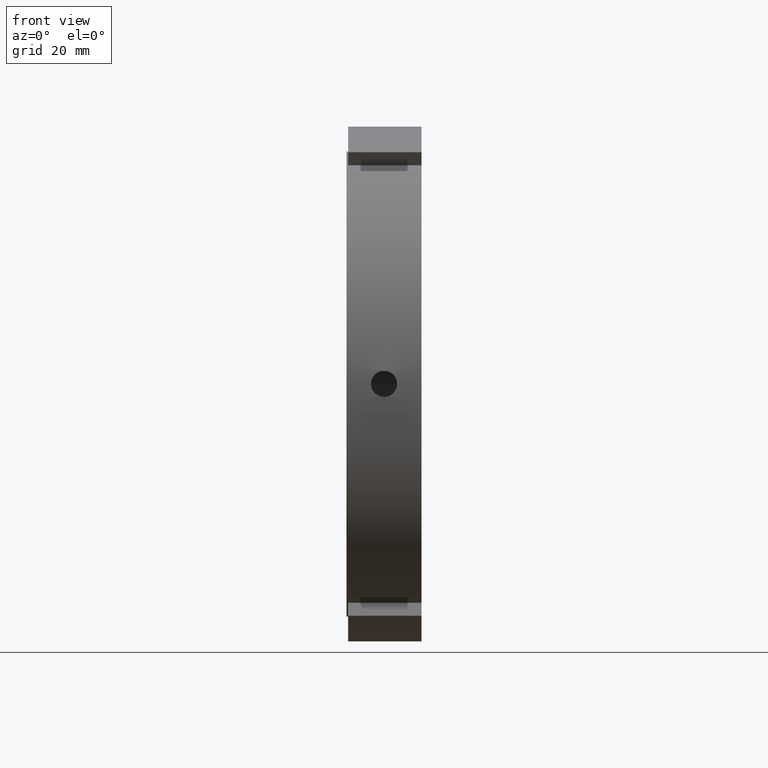
[diagram: clean part render]
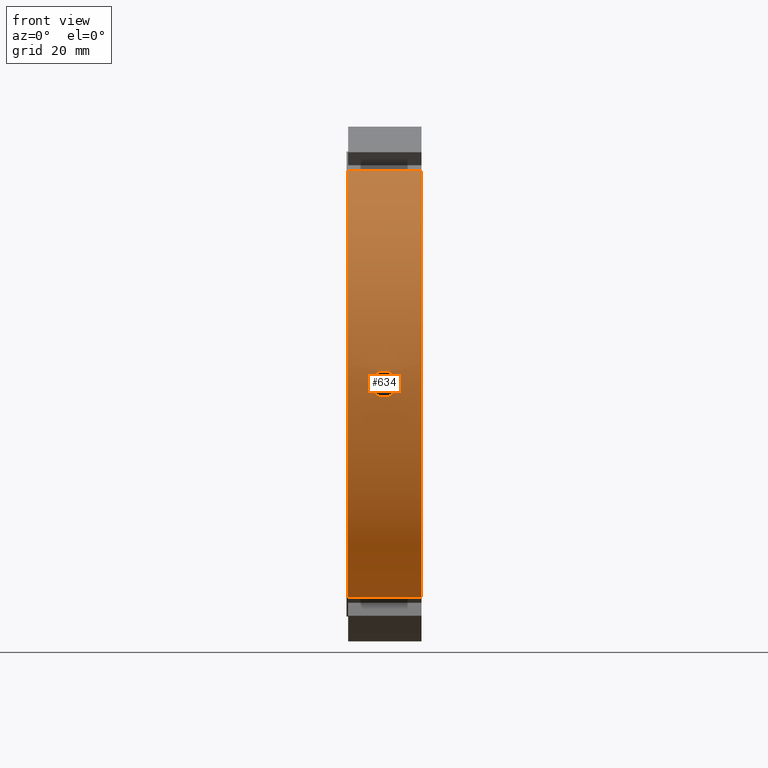
[diagram: same view with one face highlighted and labeled with its STEP entity id]
A machine part, front view. The second image highlights one B-rep face of the part: STEP entity #634.
In plain terms, the highlighted cylindrical surface (partial cylindrical patch) has radius 82.5 mm, axis along (1, 0, 0).
Its self-contained STEP definition (entity closure, byte-faithful):
#75=CARTESIAN_POINT('',(0.499999999999976,-46.336916878414101,-68.257894299509005));
#76=VERTEX_POINT('',#75);
#91=CARTESIAN_POINT('',(23.999999999999986,-46.336916878414101,-68.257894299509005));
#92=VERTEX_POINT('',#91);
#99=CARTESIAN_POINT('',(0.499999999999975,-46.336916878414094,-68.257894299508990));
#100=DIRECTION('',(1.0,0.0,0.0));
#101=VECTOR('',#100,23.500000000000011);
#102=LINE('',#99,#101);
#103=EDGE_CURVE('',#76,#92,#102,.T.);
#303=CARTESIAN_POINT('',(0.499999999999976,-46.336916878414044,68.257894299509033));
#304=VERTEX_POINT('',#303);
#313=CARTESIAN_POINT('',(23.999999999999986,-46.336916878414044,68.257894299509033));
#314=VERTEX_POINT('',#313);
#315=CARTESIAN_POINT('',(23.999999999999986,-46.336916878414044,68.257894299509033));
#316=DIRECTION('',(-1.0,0.0,0.0));
#317=VECTOR('',#316,23.500000000000011);
#318=LINE('',#315,#317);
#319=EDGE_CURVE('',#314,#304,#318,.T.);
#499=CARTESIAN_POINT('',(23.999999999999986,0.0,0.0));
#500=DIRECTION('',(1.0,0.0,0.0));
#501=DIRECTION('',(0.0,1.0,0.0));
#502=AXIS2_PLACEMENT_3D('',#499,#500,#501);
#503=CIRCLE('',#502,82.500000000000000);
#504=EDGE_CURVE('',#314,#92,#503,.T.);
#576=CARTESIAN_POINT('',(12.249999999999980,0.0,0.0));
#577=DIRECTION('',(1.0,0.0,0.0));
#578=DIRECTION('',(0.0,1.0,0.0));
#579=AXIS2_PLACEMENT_3D('',#576,#577,#578);
#580=CYLINDRICAL_SURFACE('',#579,82.500000000000000);
#581=ORIENTED_EDGE('',*,*,#103,.T.);
#582=ORIENTED_EDGE('',*,*,#504,.F.);
#583=ORIENTED_EDGE('',*,*,#319,.T.);
#584=CARTESIAN_POINT('',(0.499999999999976,0.0,0.0));
#585=DIRECTION('',(1.0,0.0,0.0));
#586=DIRECTION('',(0.0,1.0,0.0));
#587=AXIS2_PLACEMENT_3D('',#584,#585,#586);
#588=CIRCLE('',#587,82.500000000000000);
#589=EDGE_CURVE('',#304,#76,#588,.T.);
#590=ORIENTED_EDGE('',*,*,#589,.T.);
#591=EDGE_LOOP('',(#581,#582,#583,#590));
#592=FACE_OUTER_BOUND('',#591,.T.);
#593=CARTESIAN_POINT('',(11.999999999999984,-82.393632375323762,4.188000000000000));
#594=VERTEX_POINT('',#593);
#595=CARTESIAN_POINT('',(11.999999999999984,-82.393632375323747,4.188000000000000));
#596=CARTESIAN_POINT('',(12.525951644810846,-82.393632375323747,4.188000000000000));
#597=CARTESIAN_POINT('',(13.086898726166442,-82.399186571573054,4.082869934847188));
#598=CARTESIAN_POINT('',(14.118708632293311,-82.419254576669246,3.655441086518424));
#599=CARTESIAN_POINT('',(14.589579118633827,-82.433479429997021,3.333147280584681));
#600=CARTESIAN_POINT('',(15.333147197132222,-82.460187249507271,2.589579202086286));
#601=CARTESIAN_POINT('',(15.655441065487317,-82.474404102243170,2.118708677694756));
#602=CARTESIAN_POINT('',(16.082869968049618,-82.494453812369741,1.086898651383455));
#603=CARTESIAN_POINT('',(16.187999999999985,-82.500000000000000,0.525951526753225));
#604=CARTESIAN_POINT('',(16.187999999999985,-82.500000000000000,-0.525951526753224));
#605=CARTESIAN_POINT('',(16.082869968049621,-82.494453812369741,-1.086898651383454));
#606=CARTESIAN_POINT('',(15.655441065487320,-82.474404102243170,-2.118708677694756));
#607=CARTESIAN_POINT('',(15.333147197132222,-82.460187249507271,-2.589579202086285));
#608=CARTESIAN_POINT('',(14.589579118633827,-82.433479429997021,-3.333147280584681));
#609=CARTESIAN_POINT('',(14.118708632293311,-82.419254576669246,-3.655441086518423));
#610=CARTESIAN_POINT('',(13.086898726166442,-82.399186571573054,-4.082869934847188));
#611=CARTESIAN_POINT('',(12.525951644810846,-82.393632375323762,-4.188000000000000));
#612=CARTESIAN_POINT('',(11.474048355189122,-82.393632375323762,-4.188000000000000));
#613=CARTESIAN_POINT('',(10.913101273833526,-82.399186571573054,-4.082869934847188));
#614=CARTESIAN_POINT('',(9.881291367706659,-82.419254576669246,-3.655441086518425));
#615=CARTESIAN_POINT('',(9.410420881366143,-82.433479429997021,-3.333147280584681));
#616=CARTESIAN_POINT('',(8.666852802867748,-82.460187249507271,-2.589579202086286));
#617=CARTESIAN_POINT('',(8.344558934512648,-82.474404102243170,-2.118708677694757));
#618=CARTESIAN_POINT('',(7.917130031950348,-82.494453812369741,-1.086898651383456));
#619=CARTESIAN_POINT('',(7.811999999999983,-82.500000000000000,-0.525951526753226));
#620=CARTESIAN_POINT('',(7.811999999999983,-82.500000000000000,0.525951526753224));
#621=CARTESIAN_POINT('',(7.917130031950349,-82.494453812369741,1.086898651383452));
#622=CARTESIAN_POINT('',(8.344558934512648,-82.474404102243170,2.118708677694754));
#623=CARTESIAN_POINT('',(8.666852802867744,-82.460187249507271,2.589579202086283));
#624=CARTESIAN_POINT('',(9.410420881366141,-82.433479429997021,3.333147280584679));
#625=CARTESIAN_POINT('',(9.881291367706657,-82.419254576669246,3.655441086518423));
#626=CARTESIAN_POINT('',(10.913101273833522,-82.399186571573054,4.082869934847188));
#627=CARTESIAN_POINT('',(11.474048355189122,-82.393632375323747,4.188000000000000));
#628=CARTESIAN_POINT('',(11.999999999999984,-82.393632375323747,4.188000000000000));
#629=B_SPLINE_CURVE_WITH_KNOTS('',3,(#595,#596,#597,#598,#599,#600,#601,#602,#603,#604,#605,#606,#607,#608,#609,#610,#611,#612,#613,#614,#615,#616,#617,#618,#619,#620,#621,#622,#623,#624,#625,#626,#627,#628),.UNSPECIFIED.,.T.,.U.,(4,2,2,2,2,2,2,2,2,2,2,2,2,2,2,2,4),(0.0,0.157785493443258,0.315570986886517,0.473356444912484,0.631141902938452,0.788927360964419,0.946712818990387,1.104498312433645,1.262283805876904,1.420069299320163,1.577854792763421,1.735640250789388,1.893425708815356,2.051211166841323,2.208996624867291,2.366782118310550,2.524567611753808),.UNSPECIFIED.);
#630=EDGE_CURVE('',#594,#594,#629,.T.);
#631=ORIENTED_EDGE('',*,*,#630,.T.);
#632=EDGE_LOOP('',(#631));
#633=FACE_BOUND('',#632,.T.);
#634=ADVANCED_FACE('',(#592,#633),#580,.T.);